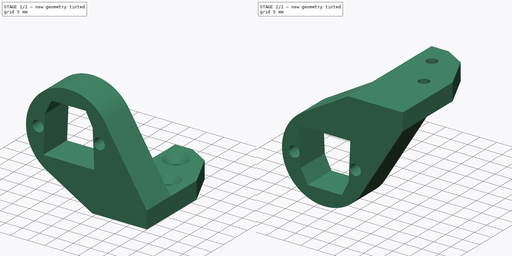
[diagram: build sequence overview — one tinted view per stage of 2, left to right]
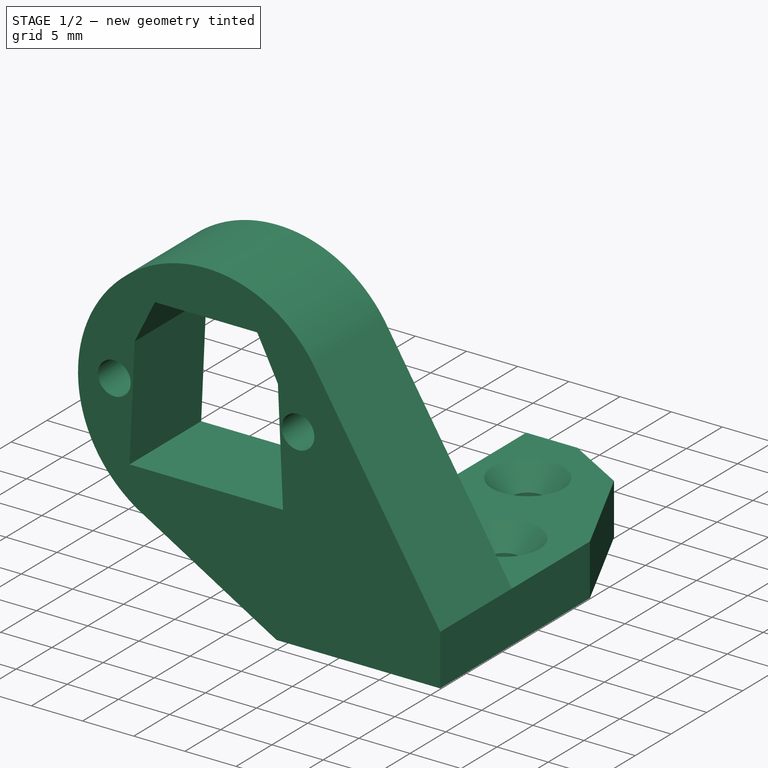
[diagram: stage 1 of 2 — iso view after this stage's code; geometry added in this stage tinted green]
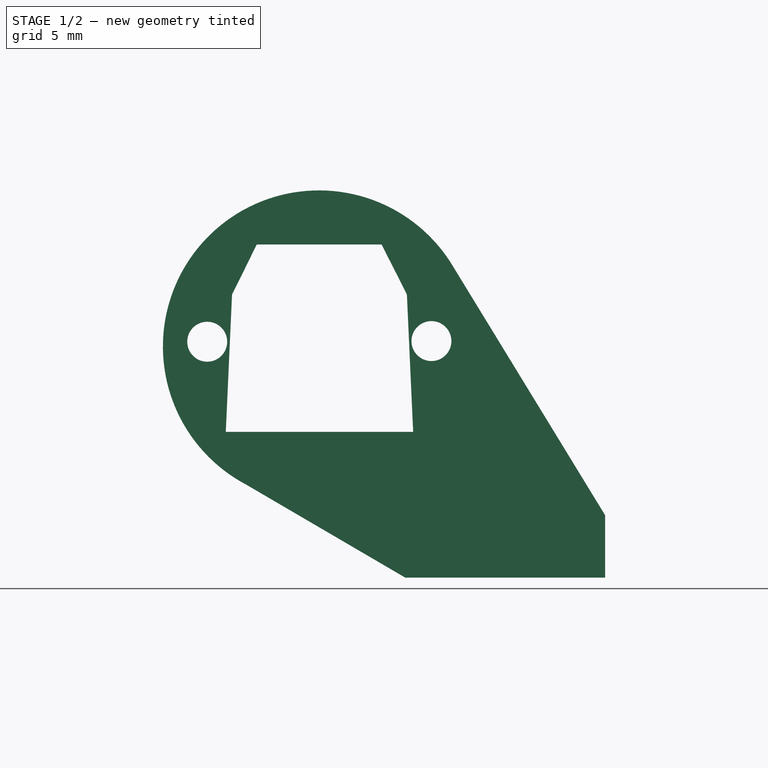
[diagram: stage 1 of 2 — front view after this stage's code; geometry added in this stage tinted green]
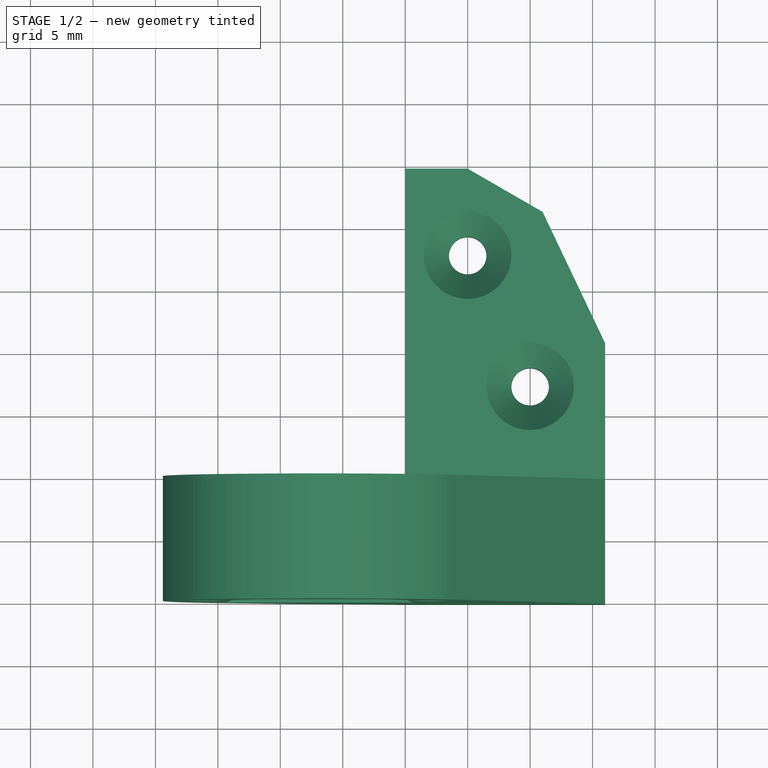
[diagram: stage 1 of 2 — top view after this stage's code; geometry added in this stage tinted green]
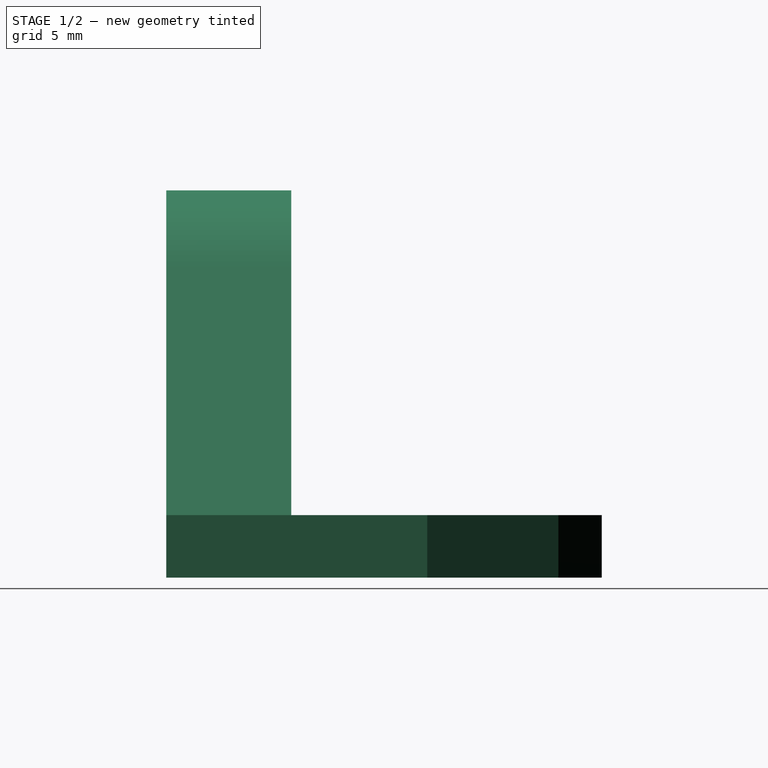
[diagram: stage 1 of 2 — right view after this stage's code; geometry added in this stage tinted green]
FCSTD DOCUMENT  (FreeCAD 0.18R16131 (Git))
Label: BLTouch
License: All rights reserved
LicenseURL: http://en.wikipedia.org/wiki/All_rights_reserved
objects: Part::Feature×1, PartDesign::FeatureBase×1, Sketcher::SketchObject×1, PartDesign::Pocket×1, PartDesign::Body×1, Part::Mirroring×1
note: 7 computed .brp shape members not serialized (recipe doc carries the construction recipe); baked Part::Feature solids carry a one-line shape summary decoded from their .brp

FEATURE [Part::Feature] E3DV6_BLTouch_Sensor_V4_1001001001_solid  label="E3DV6_BLTouch_Sensor_V4_1003 (Solid)"
  shape: bbox 35.4 x 34.86 x 31 mm, 566 faces (baked)
FEATURE [PartDesign::FeatureBase] BaseFeature
  BaseFeature = -> E3DV6_BLTouch_Sensor_V4_1001001001_solid
FEATURE [Sketcher::SketchObject] Sketch
  ExternalGeometry = -> [BaseFeature]
  MapMode = 5
  Placement = pos=(0,44.928,0) rot=(0,0.707107,0.707107;3.14159rad)
  Support = -> [BaseFeature]
  sketch-geometry (6):
    g0: LineSegment StartX=-0.633851 StartY=16.664 StartZ=0 EndX=-0.133851 EndY=27.664 EndZ=0
    g1: LineSegment StartX=1.88615 StartY=31.664 StartZ=0 EndX=11.8861 EndY=31.664 EndZ=0
    g2: LineSegment StartX=-0.133851 StartY=27.664 StartZ=0 EndX=1.88615 EndY=31.664 EndZ=0
    g3: LineSegment StartX=11.8861 StartY=31.664 StartZ=0 EndX=13.8661 EndY=27.664 EndZ=0
    g4: LineSegment StartX=13.8661 StartY=27.664 StartZ=0 EndX=14.3661 EndY=16.664 EndZ=0
    g5: LineSegment StartX=14.3661 StartY=16.664 StartZ=0 EndX=-0.633851 EndY=16.664 EndZ=0
  constraints (16):
    c: Coincident(g1,g2)
    c: Coincident(g2,g0)
    c: Coincident(g4,g3)
    c: DistanceX(g0,g3) = 14
    c: Coincident(g0,g5)
    c: Coincident(g5,g4)
    c: Coincident(g3,g1)
    c: Horizontal(g5)
    c: Horizontal(g1)
    c: DistanceX(g1,g1) = 10
    c: DistanceY(g0,g1) = 15
    c: DistanceY(g4,g3) = 11
    c: Horizontal(g0,g3)
    c: DistanceX(g0,g1) = 2.52
    c: DistanceX(g5,g5) = 15
    c: DistanceX(g0,g0) = 0.5
FEATURE [PartDesign::Pocket] Pocket
  BaseFeature = -> BaseFeature
  Length = 17
  Length2 = 100
  Profile = -> Sketch
  Type = 1
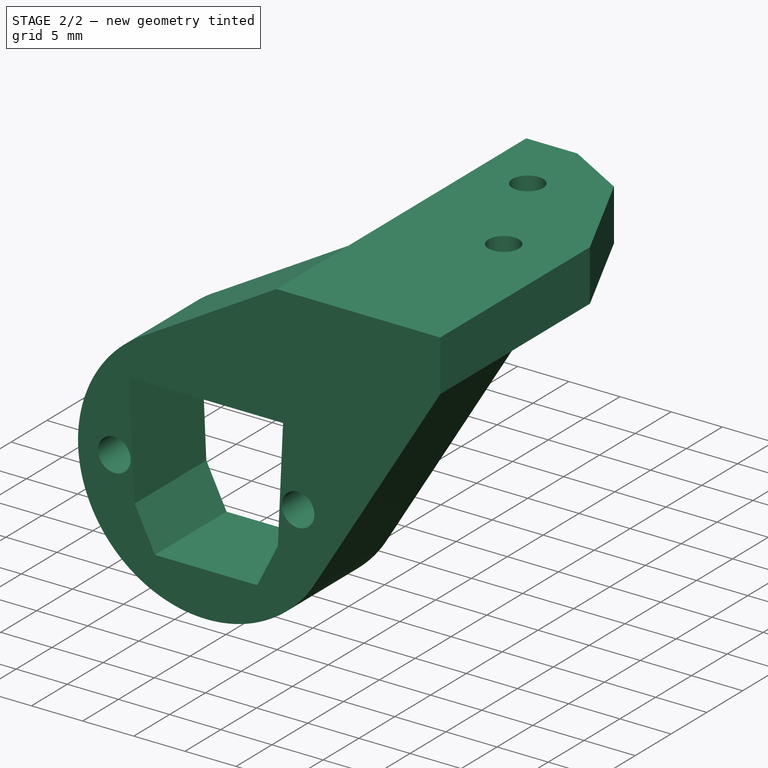
[diagram: stage 2 of 2 — iso view after this stage's code; geometry added in this stage tinted green]
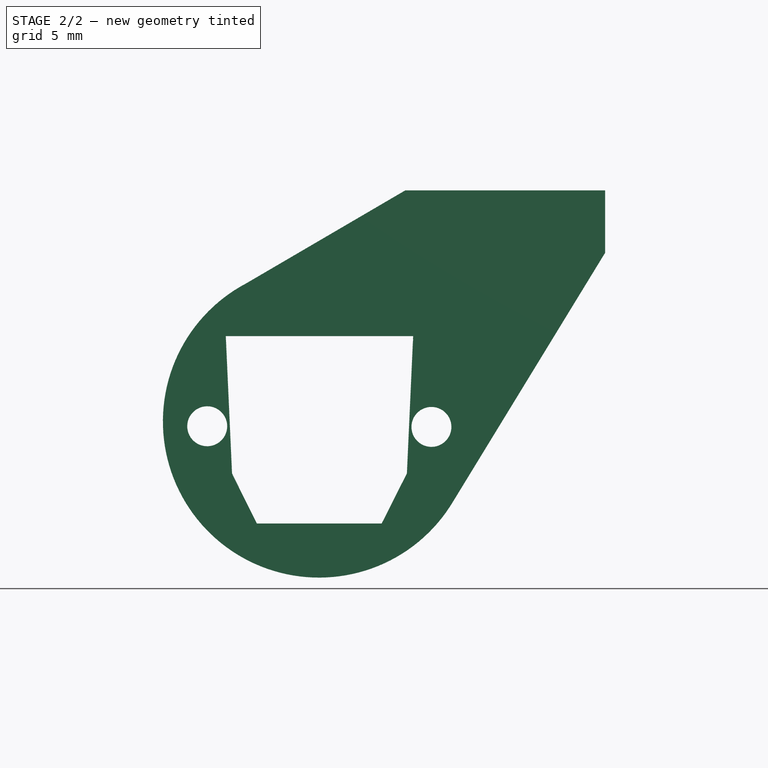
[diagram: stage 2 of 2 — front view after this stage's code; geometry added in this stage tinted green]
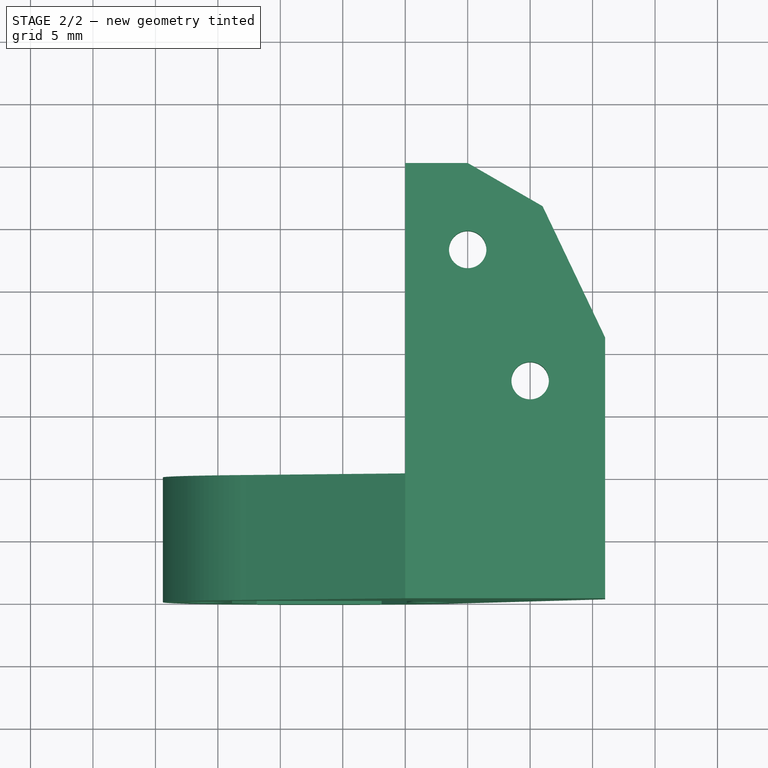
[diagram: stage 2 of 2 — top view after this stage's code; geometry added in this stage tinted green]
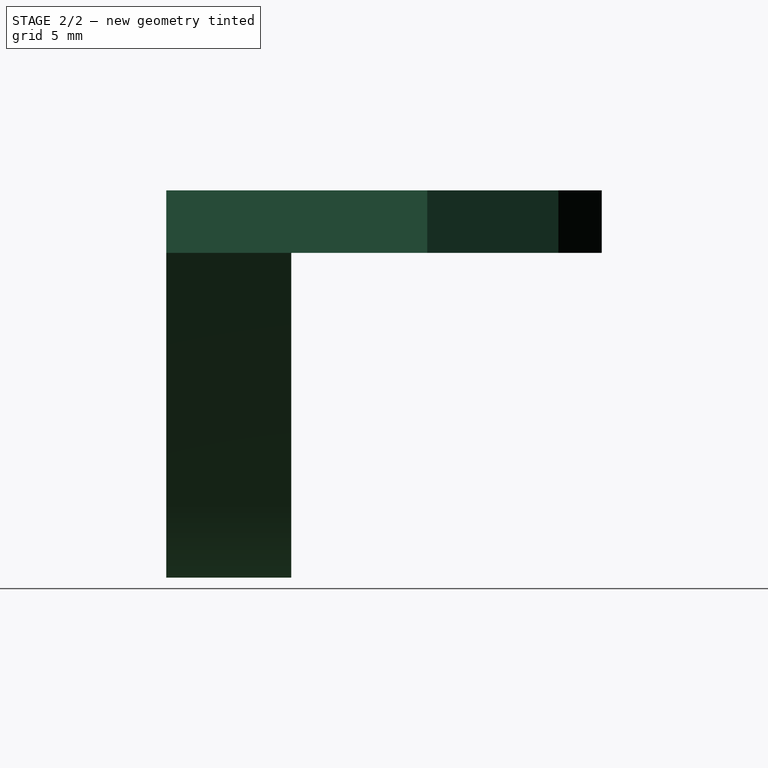
[diagram: stage 2 of 2 — right view after this stage's code; geometry added in this stage tinted green]
FEATURE [PartDesign::Body] Body
  BaseFeature = -> E3DV6_BLTouch_Sensor_V4_1001001001_solid
  Group = -> [BaseFeature,Sketch,Pocket]
  Origin = -> Origin
  Tip = -> Pocket
FEATURE [Part::Mirroring] Part__Mirroring  label="Pocket (Mirror #1)"
  Base = (0,0,0)
  Normal = (0,0,1)
  Source = -> Pocket
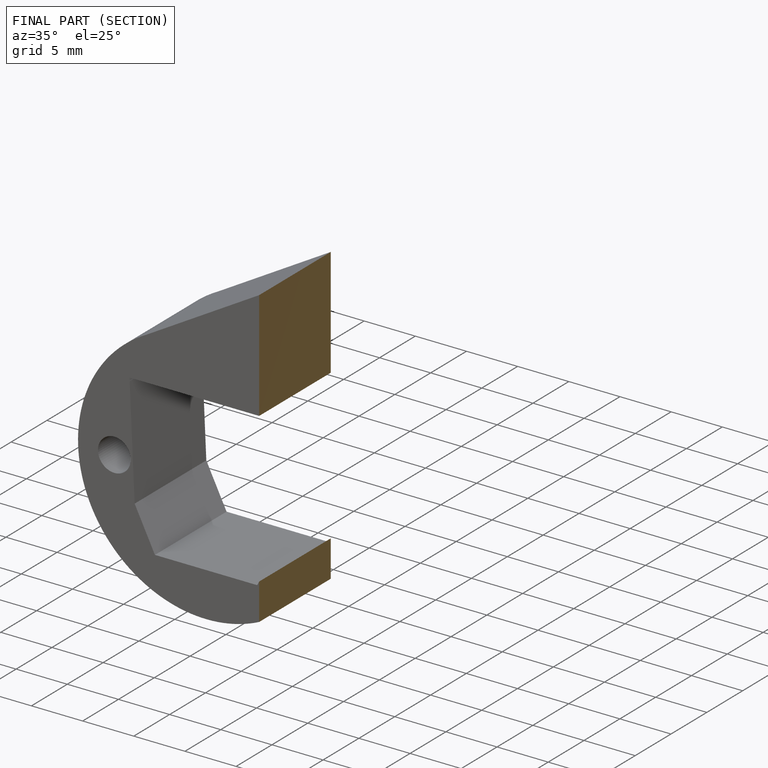
[diagram: finished part — half-section view (interior)]
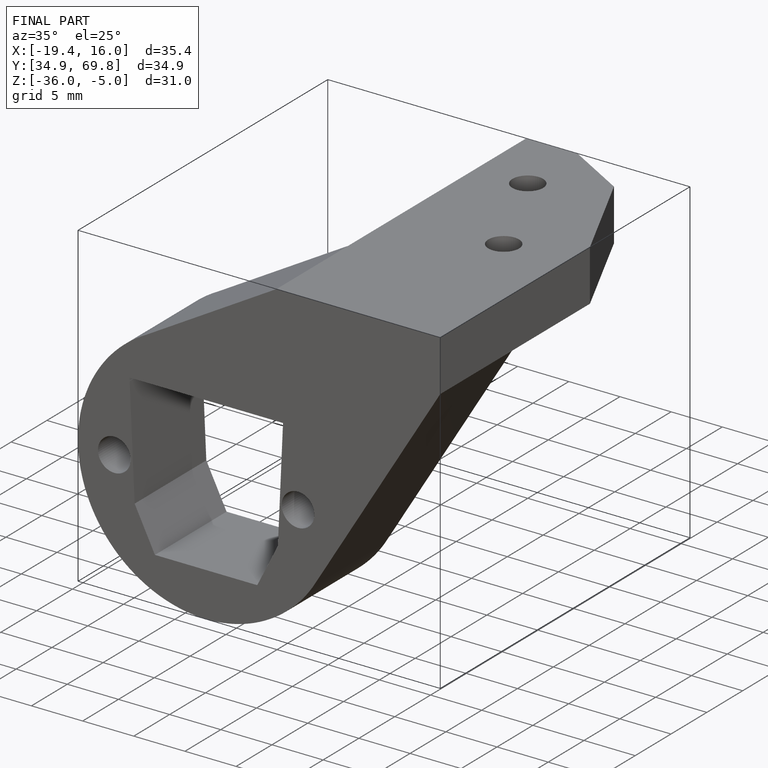
[diagram: finished part — iso view with bounding-box wireframe]
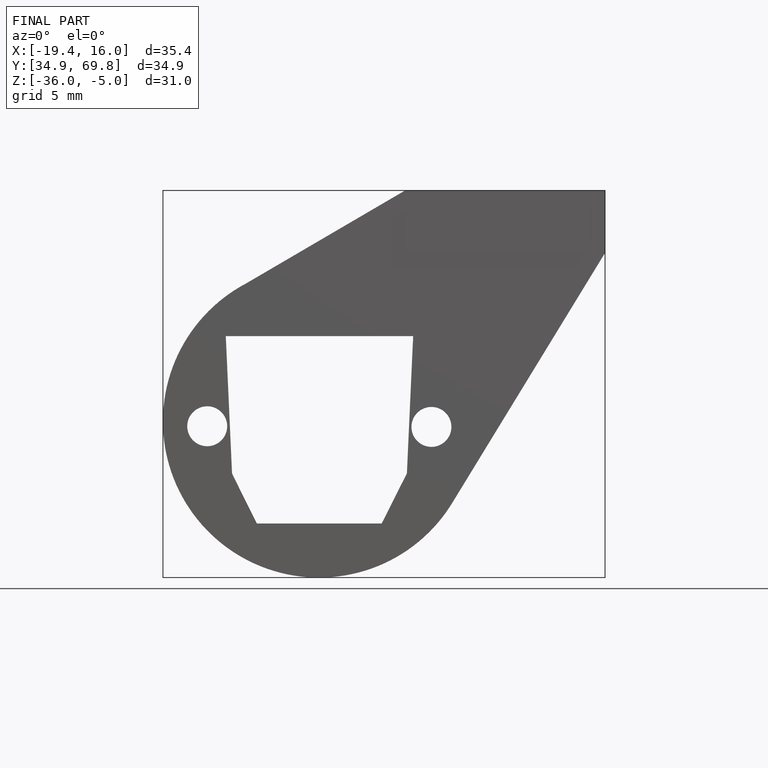
[diagram: finished part — front view with bounding-box wireframe]
